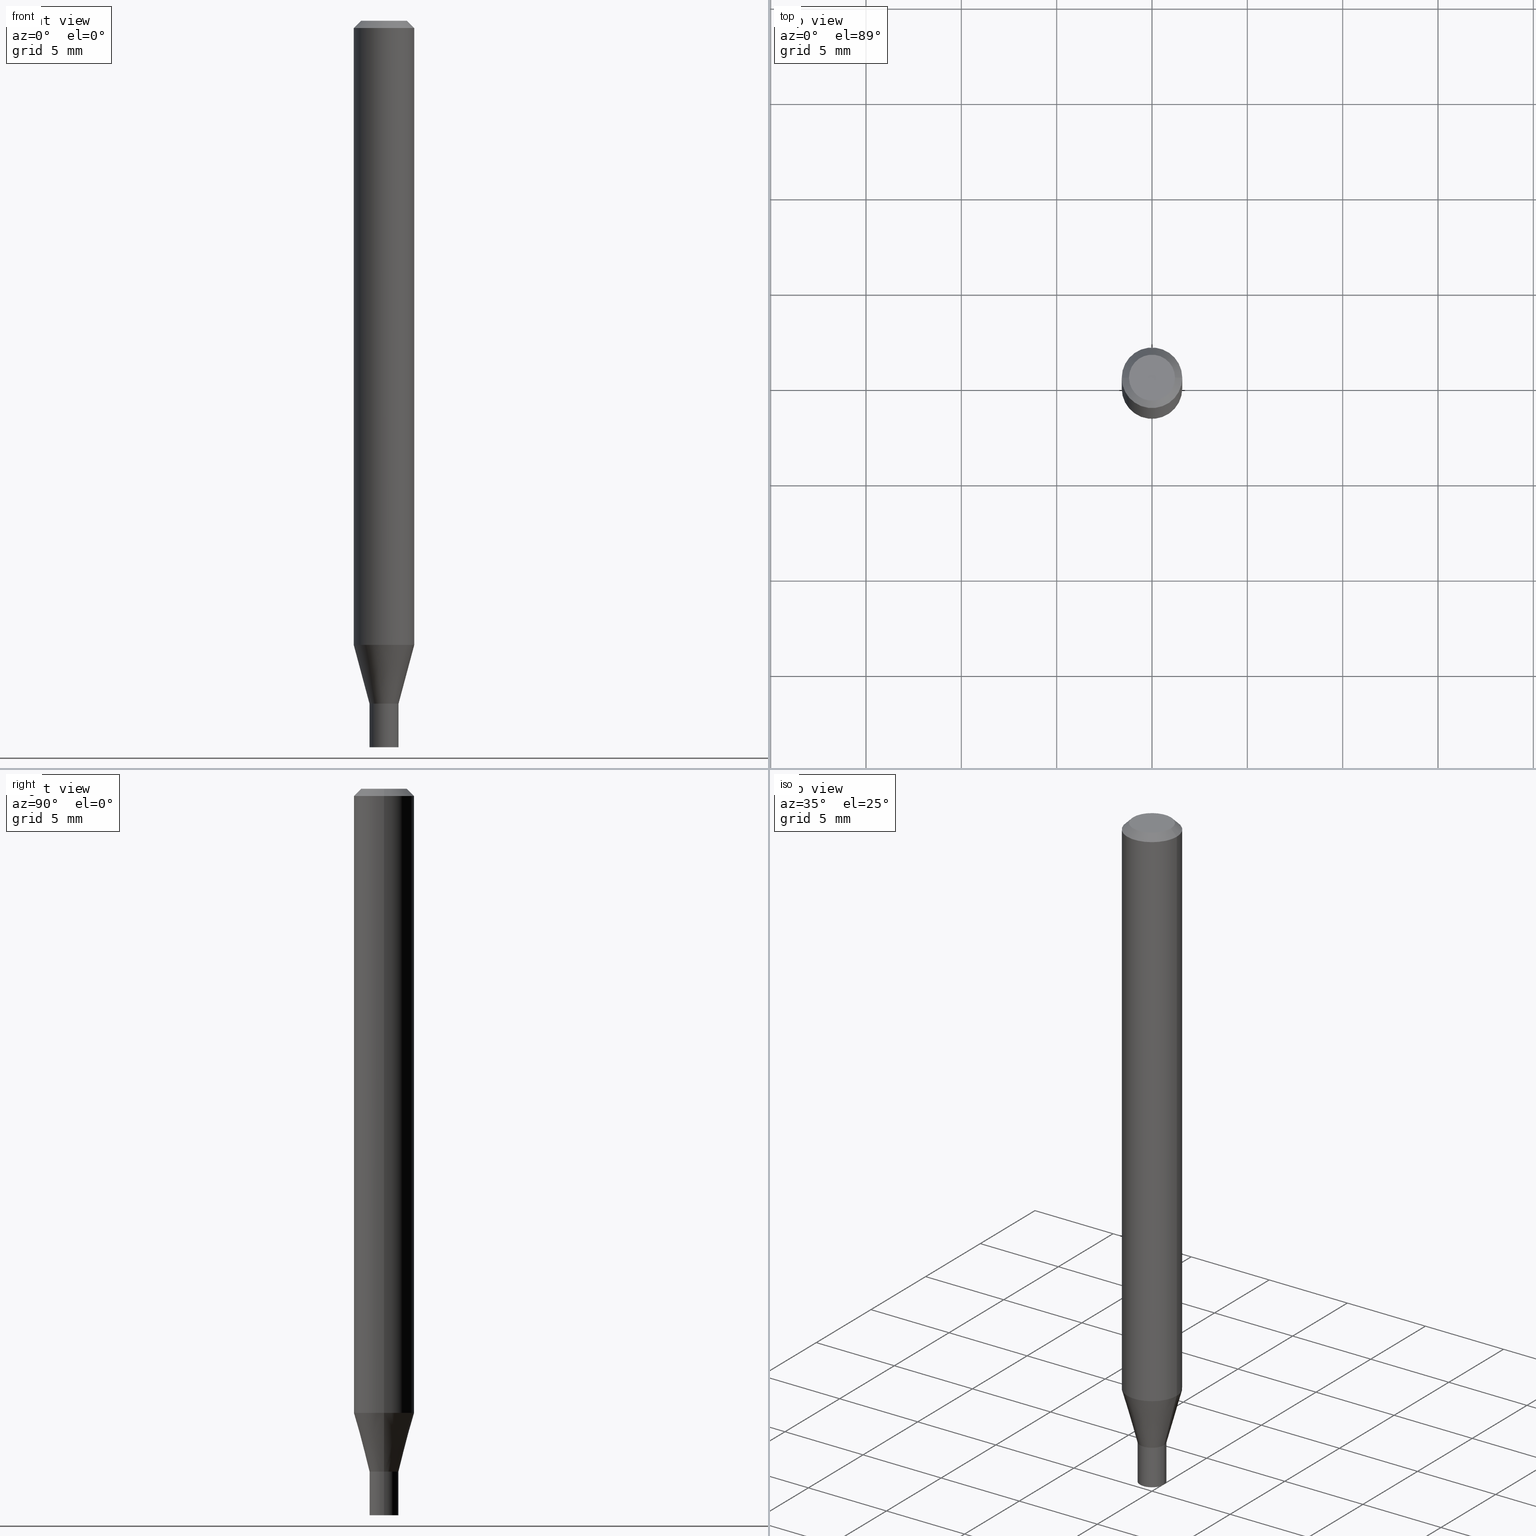
[diagram: canonical four-view strip — front | top / right | iso, engineering-drawing reading convention]
A machine part, canonical four-view strip (front | top / right | iso — engineering-drawing reading convention). The complete STEP part file that produces these views, byte-faithful:
ISO-10303-21;
HEADER;
FILE_DESCRIPTION (( 'STEP AP203' ),
    '1' );
FILE_NAME ('04095.STEP',
    '2024-03-14T16:59:09',
    ( '' ),
    ( '' ),
    'SwSTEP 2.0',
    'SolidWorks 2023',
    '' );
FILE_SCHEMA (( 'CONFIG_CONTROL_DESIGN' ));
ENDSEC;

DATA;
#1 = LINE ( 'NONE', #463, #37 ) ;
#2 = EDGE_LOOP ( 'NONE', ( #202, #253, #21, #297 ) ) ;
#3 = ADVANCED_FACE ( 'NONE', ( #4 ), #127, .T. ) ;
#4 = FACE_OUTER_BOUND ( 'NONE', #116, .T. ) ;
#5 = APPROVAL_DATE_TIME ( #96, #191 ) ;
#6 = AXIS2_PLACEMENT_3D ( 'NONE', #128, #273, #196 ) ;
#7 = AXIS2_PLACEMENT_3D ( 'NONE', #324, #80, #250 ) ;
#8 = PERSON_AND_ORGANIZATION_ROLE ( 'design_supplier' ) ;
#9 = CARTESIAN_POINT ( 'NONE',  ( 0.000000000000000000, 0.000000000000000000, 0.000000000000000000 ) ) ;
#10 = CC_DESIGN_PERSON_AND_ORGANIZATION_ASSIGNMENT ( #392, #70, ( #461 ) ) ;
#11 = CIRCLE ( 'NONE', #238, 0.02999999999999999889 ) ;
#12 = LINE ( 'NONE', #451, #49 ) ;
#13 = VERTEX_POINT ( 'NONE', #313 ) ;
#14 = CARTESIAN_POINT ( 'NONE',  ( -0.06250000000000000000, 4.440892098500626162E-16, -3.074334431409316114E-30 ) ) ;
#15 = ORIENTED_EDGE ( 'NONE', *, *, #39, .F. ) ;
#16 = CARTESIAN_POINT ( 'NONE',  ( 0.000000000000000000, 0.000000000000000000, 0.000000000000000000 ) ) ;
#17 = PLANE ( 'NONE',  #465 ) ;
#18 = EDGE_LOOP ( 'NONE', ( #157, #228, #27, #76 ) ) ;
#19 = PLANE ( 'NONE',  #252 ) ;
#20 = CARTESIAN_POINT ( 'NONE',  ( 3.151496067148295806E-29, -4.499501150886003245E-15, -1.288708348754013633 ) ) ;
#21 = ORIENTED_EDGE ( 'NONE', *, *, #111, .F. ) ;
#22 = CARTESIAN_POINT ( 'NONE',  ( 3.448111016721042669E-29, -4.922988687768835701E-15, -1.409999999999999920 ) ) ;
#23 = CARTESIAN_POINT ( 'NONE',  ( 0.000000000000000000, 0.000000000000000000, 0.000000000000000000 ) ) ;
#24 = VERTEX_POINT ( 'NONE', #129 ) ;
#25 = DIRECTION ( 'NONE',  ( -0.7071067811865416886, 2.468850131082196713E-15, -0.7071067811865531239 ) ) ;
#26 = AXIS2_PLACEMENT_3D ( 'NONE', #20, #51, #328 ) ;
#27 = ORIENTED_EDGE ( 'NONE', *, *, #39, .T. ) ;
#28 = PLANE ( 'NONE',  #393 ) ;
#29 = ORIENTED_EDGE ( 'NONE', *, *, #377, .F. ) ;
#30 = AXIS2_PLACEMENT_3D ( 'NONE', #179, #336, #374 ) ;
#31 = EDGE_LOOP ( 'NONE', ( #300, #418, #258, #466 ) ) ;
#32 = CARTESIAN_POINT ( 'NONE',  ( -0.02999999999999999889, -4.866942527288747877E-15, -1.500000000000000222 ) ) ;
#33 = AXIS2_PLACEMENT_3D ( 'NONE', #143, #288, #325 ) ;
#34 = ORIENTED_EDGE ( 'NONE', *, *, #327, .T. ) ;
#35 = DIRECTION ( 'NONE',  ( 1.000000000000000000, -6.982962677686267499E-15, 4.876176775795936353E-29 ) ) ;
#36 = PERSON_AND_ORGANIZATION_ROLE ( 'classification_officer' ) ;
#37 = VECTOR ( 'NONE', #356, 39.37007874015748143 ) ;
#38 = APPLICATION_CONTEXT ( 'configuration controlled 3d designs of mechanical parts and assemblies' ) ;
#39 = EDGE_CURVE ( 'NONE', #444, #254, #420, .T. ) ;
#40 = FACE_OUTER_BOUND ( 'NONE', #364, .T. ) ;
#41 = ADVANCED_FACE ( 'NONE', ( #236 ), #431, .T. ) ;
#42 = AXIS2_PLACEMENT_3D ( 'NONE', #340, #304, #226 ) ;
#43 = CARTESIAN_POINT ( 'NONE',  ( 3.668203209277705088E-31, -5.237222008264718399E-17, -0.01499999999999999944 ) ) ;
#44 = ORIENTED_EDGE ( 'NONE', *, *, #438, .F. ) ;
#45 = AXIS2_PLACEMENT_3D ( 'NONE', #16, #446, #294 ) ;
#46 = DIRECTION ( 'NONE',  ( -2.445468806185136597E-29, 3.491481338843145583E-15, 1.000000000000000000 ) ) ;
#47 = PRODUCT_DEFINITION_SHAPE ( 'NONE', 'NONE',  #428 ) ;
#48 = DIRECTION ( 'NONE',  ( 0.2588190451025213501, 1.565188264969621968E-15, 0.9659258262890682012 ) ) ;
#49 = VECTOR ( 'NONE', #121, 39.37007874015748143 ) ;
#50 = DIRECTION ( 'NONE',  ( -1.000000000000000000, 6.982962677686265922E-15, -4.876176775795935793E-29 ) ) ;
#51 = DIRECTION ( 'NONE',  ( -2.445468806185136597E-29, 3.491481338843145583E-15, 1.000000000000000000 ) ) ;
#52 = DIRECTION ( 'NONE',  ( 1.000000000000000000, -6.982962677686254878E-15, 0.000000000000000000 ) ) ;
#53 = ORIENTED_EDGE ( 'NONE', *, *, #241, .T. ) ;
#54 = DIRECTION ( 'NONE',  ( -1.000000000000000000, 6.982962677686265922E-15, -4.876176775795935793E-29 ) ) ;
#55 = DIRECTION ( 'NONE',  ( -0.7071067811865656694, 7.493145998870420424E-15, 0.7071067811865294761 ) ) ;
#56 = CC_DESIGN_APPROVAL ( #339, ( #461 ) ) ;
#57 = PRODUCT ( '04095', '04095', '', ( #399 ) ) ;
#58 = ORIENTED_EDGE ( 'NONE', *, *, #358, .T. ) ;
#59 = ADVANCED_FACE ( 'NONE', ( #205 ), #346, .T. ) ;
#60 = DIRECTION ( 'NONE',  ( -2.445468806185136597E-29, 3.491481338843145583E-15, 1.000000000000000000 ) ) ;
#61 = VECTOR ( 'NONE', #158, 39.37007874015748143 ) ;
#62 = VERTEX_POINT ( 'NONE', #423 ) ;
#63 = VERTEX_POINT ( 'NONE', #103 ) ;
#64 = CALENDAR_DATE ( 2024, 14, 3 ) ;
#65 = AXIS2_PLACEMENT_3D ( 'NONE', #188, #60, #410 ) ;
#66 = ORIENTED_EDGE ( 'NONE', *, *, #362, .T. ) ;
#67 = SHAPE_DEFINITION_REPRESENTATION ( #47, #229 ) ;
#68 = DIRECTION ( 'NONE',  ( 1.000000000000000000, -6.982962677686254878E-15, 0.000000000000000000 ) ) ;
#69 = CARTESIAN_POINT ( 'NONE',  ( 0.02999999999999999889, -5.132477568099424807E-15, -1.410000000000000364 ) ) ;
#70 = PERSON_AND_ORGANIZATION_ROLE ( 'creator' ) ;
#71 = ADVANCED_FACE ( 'NONE', ( #239 ), #184, .T. ) ;
#72 = PERSON_AND_ORGANIZATION_ROLE ( 'creator' ) ;
#73 = CIRCLE ( 'NONE', #243, 0.02999999999999999889 ) ;
#74 = ADVANCED_FACE ( 'NONE', ( #181 ), #17, .F. ) ;
#75 = CIRCLE ( 'NONE', #381, 0.03000000000000047420 ) ;
#76 = ORIENTED_EDGE ( 'NONE', *, *, #302, .F. ) ;
#77 = DIRECTION ( 'NONE',  ( -2.445468806185136597E-29, 3.491481338843145583E-15, 1.000000000000000000 ) ) ;
#78 = ORIENTED_EDGE ( 'NONE', *, *, #279, .F. ) ;
#79 =( CONVERSION_BASED_UNIT ( 'INCH', #180 ) LENGTH_UNIT ( ) NAMED_UNIT ( #248 ) );
#80 = DIRECTION ( 'NONE',  ( -2.445468806185136597E-29, 3.491481338843145583E-15, 1.000000000000000000 ) ) ;
#81 = ORIENTED_EDGE ( 'NONE', *, *, #464, .T. ) ;
#82 = PERSON_AND_ORGANIZATION ( #98, #110 ) ;
#83 = CARTESIAN_POINT ( 'NONE',  ( 0.02999999999999999889, -5.446710888595306494E-15, -1.500000000000000222 ) ) ;
#84 = CC_DESIGN_PERSON_AND_ORGANIZATION_ASSIGNMENT ( #206, #36, ( #436 ) ) ;
#85 = AXIS2_PLACEMENT_3D ( 'NONE', #407, #77, #218 ) ;
#86 = DIRECTION ( 'NONE',  ( -2.445468806185136877E-29, 3.491481338843145188E-15, 1.000000000000000000 ) ) ;
#87 =( LENGTH_UNIT ( ) NAMED_UNIT ( * ) SI_UNIT ( $, .METRE. ) );
#88 = DIRECTION ( 'NONE',  ( -2.445468806185136597E-29, 3.491481338843145583E-15, 1.000000000000000000 ) ) ;
#89 = ORIENTED_EDGE ( 'NONE', *, *, #357, .T. ) ;
#90 = DIRECTION ( 'NONE',  ( -2.445468806185136597E-29, 3.491481338843145583E-15, 1.000000000000000000 ) ) ;
#91 = CLOSED_SHELL ( 'NONE', ( #317, #123, #59, #369 ) ) ;
#92 = AXIS2_PLACEMENT_3D ( 'NONE', #43, #363, #153 ) ;
#93 = ORIENTED_EDGE ( 'NONE', *, *, #396, .T. ) ;
#94 = ORIENTED_EDGE ( 'NONE', *, *, #377, .T. ) ;
#95 = UNCERTAINTY_MEASURE_WITH_UNIT (LENGTH_MEASURE( 1.000000000000000082E-05 ), #79, 'distance_accuracy_value', 'NONE');
#96 = DATE_AND_TIME ( #383, #151 ) ;
#97 = LOCAL_TIME ( 12, 59, 9.000000000000000000, #416 ) ;
#98 = PERSON ( 'UNSPECIFIED', 'UNSPECIFIED', 'UNSPECIFIED', ('UNSPECIFIED'), ('UNSPECIFIED'), ('UNSPECIFIED') ) ;
#99 = CARTESIAN_POINT ( 'NONE',  ( 0.06250000000000000000, -4.364351673553916694E-16, 3.047610484872459871E-30 ) ) ;
#100 = CARTESIAN_POINT ( 'NONE',  ( 0.06250000000000000000, -4.935936318241394126E-15, -1.288708348754013633 ) ) ;
#101 = FACE_OUTER_BOUND ( 'NONE', #2, .T. ) ;
#102 = CONICAL_SURFACE ( 'NONE', #388, 0.03000000000000047420, 0.2617993877991500740 ) ;
#103 = CARTESIAN_POINT ( 'NONE',  ( 0.02949999999999999845, -5.128986086760581800E-15, -1.410000000000000586 ) ) ;
#104 = DIRECTION ( 'NONE',  ( 1.000000000000000000, -6.982962677686265922E-15, 4.876176775795935793E-29 ) ) ;
#105 = APPROVAL_STATUS ( 'not_yet_approved' ) ;
#106 = PERSON_AND_ORGANIZATION ( #98, #110 ) ;
#107 = VECTOR ( 'NONE', #131, 39.37007874015748143 ) ;
#108 = AXIS2_PLACEMENT_3D ( 'NONE', #411, #195, #245 ) ;
#109 = DIRECTION ( 'NONE',  ( -2.445468806185136597E-29, 3.491481338843145583E-15, 1.000000000000000000 ) ) ;
#110 = ORGANIZATION ( 'UNSPECIFIED', 'UNSPECIFIED', '' ) ;
#111 = EDGE_CURVE ( 'NONE', #415, #397, #310, .T. ) ;
#112 = ORIENTED_EDGE ( 'NONE', *, *, #443, .F. ) ;
#113 = CIRCLE ( 'NONE', #156, 0.06250000000000000000 ) ;
#114 = DIRECTION ( 'NONE',  ( -2.445468806185136597E-29, 3.491481338843145583E-15, 1.000000000000000000 ) ) ;
#115 = DIRECTION ( 'NONE',  ( 1.000000000000000000, -6.982962677686267499E-15, 4.852736867747366768E-29 ) ) ;
#116 = EDGE_LOOP ( 'NONE', ( #269, #154, #53, #338 ) ) ;
#117 = CARTESIAN_POINT ( 'NONE',  ( -0.03000000000000033890, 2.131628207280324638E-16, -1.475680527076488172E-30 ) ) ;
#118 = PERSON_AND_ORGANIZATION_ROLE ( 'design_owner' ) ;
#119 = VERTEX_POINT ( 'NONE', #319 ) ;
#120 = DIRECTION ( 'NONE',  ( 2.438088387897960049E-29, -3.491481338843145188E-15, -1.000000000000000000 ) ) ;
#121 = DIRECTION ( 'NONE',  ( -2.445468806185136877E-29, 3.491481338843145188E-15, 1.000000000000000000 ) ) ;
#122 = DIRECTION ( 'NONE',  ( 1.000000000000000000, -6.982962677686254878E-15, 0.000000000000000000 ) ) ;
#123 = ADVANCED_FACE ( 'NONE', ( #40 ), #208, .F. ) ;
#124 = ORIENTED_EDGE ( 'NONE', *, *, #198, .F. ) ;
#125 = DIRECTION ( 'NONE',  ( -0.2588190451025213501, 5.211531920934551042E-15, 0.9659258262890682012 ) ) ;
#126 = ORIENTED_EDGE ( 'NONE', *, *, #321, .F. ) ;
#127 = CONICAL_SURFACE ( 'NONE', #6, 0.06250000000000000000, 0.7853981633974401744 ) ;
#128 = CARTESIAN_POINT ( 'NONE',  ( 3.668203209277705088E-31, -5.237222008264718399E-17, -0.01499999999999999944 ) ) ;
#129 = CARTESIAN_POINT ( 'NONE',  ( -0.02949999999999999845, -4.710729353545495154E-15, -1.410000000000000586 ) ) ;
#130 = CARTESIAN_POINT ( 'NONE',  ( -0.02999999999999999889, 2.131628207280300479E-16, -1.475680527076471707E-30 ) ) ;
#131 = DIRECTION ( 'NONE',  ( -2.445468806185136877E-29, 3.491481338843145188E-15, 1.000000000000000000 ) ) ;
#132 = AXIS2_PLACEMENT_3D ( 'NONE', #408, #251, #136 ) ;
#133 = CARTESIAN_POINT ( 'NONE',  ( 3.448111016721043790E-29, -4.922988687768837279E-15, -1.410000000000000586 ) ) ;
#134 = CARTESIAN_POINT ( 'NONE',  ( 3.446888282317950988E-29, -4.921242947099414987E-15, -1.409500000000000419 ) ) ;
#135 = CYLINDRICAL_SURFACE ( 'NONE', #320, 0.06250000000000000000 ) ;
#136 = DIRECTION ( 'NONE',  ( 1.000000000000000000, -6.982962677686268288E-15, 0.000000000000000000 ) ) ;
#137 = CIRCLE ( 'NONE', #26, 0.06250000000000000000 ) ;
#138 = CARTESIAN_POINT ( 'NONE',  ( 3.668203209277705088E-31, -5.237222008264718399E-17, -0.01499999999999999944 ) ) ;
#139 = FACE_OUTER_BOUND ( 'NONE', #335, .T. ) ;
#140 = ORIENTED_EDGE ( 'NONE', *, *, #358, .F. ) ;
#141 =( GEOMETRIC_REPRESENTATION_CONTEXT ( 3 ) GLOBAL_UNCERTAINTY_ASSIGNED_CONTEXT ( ( #95 ) ) GLOBAL_UNIT_ASSIGNED_CONTEXT ( ( #79, #459, #305 ) ) REPRESENTATION_CONTEXT ( 'NONE', 'WORKASPACE' ) );
#142 = FACE_OUTER_BOUND ( 'NONE', #177, .T. ) ;
#143 = CARTESIAN_POINT ( 'NONE',  ( 3.576687321579069994E-29, -5.368277968210015545E-15, -1.500000000000000222 ) ) ;
#144 = CYLINDRICAL_SURFACE ( 'NONE', #42, 0.06250000000000000000 ) ;
#145 = DIRECTION ( 'NONE',  ( 1.000000000000000000, -6.982962677686266711E-15, 0.000000000000000000 ) ) ;
#146 = ADVANCED_FACE ( 'NONE', ( #214 ), #194, .T. ) ;
#147 = ORIENTED_EDGE ( 'NONE', *, *, #386, .F. ) ;
#148 = CARTESIAN_POINT ( 'NONE',  ( 3.446888282317950988E-29, -4.921242947099414987E-15, -1.409500000000000419 ) ) ;
#149 = ORIENTED_EDGE ( 'NONE', *, *, #190, .F. ) ;
#150 = CARTESIAN_POINT ( 'NONE',  ( -0.03000000000000019665, -4.708080126371383164E-15, -1.409500000000000419 ) ) ;
#151 = LOCAL_TIME ( 12, 59, 9.000000000000000000, #280 ) ;
#152 = CARTESIAN_POINT ( 'NONE',  ( -0.06250000000000000000, 3.840629472727444916E-16, -0.01499999999999999944 ) ) ;
#153 = DIRECTION ( 'NONE',  ( -1.000000000000000000, 6.982962677686266711E-15, 0.000000000000000000 ) ) ;
#154 = ORIENTED_EDGE ( 'NONE', *, *, #321, .T. ) ;
#155 = ADVANCED_FACE ( 'NONE', ( #139 ), #102, .T. ) ;
#156 = AXIS2_PLACEMENT_3D ( 'NONE', #138, #114, #145 ) ;
#157 = ORIENTED_EDGE ( 'NONE', *, *, #327, .F. ) ;
#158 = DIRECTION ( 'NONE',  ( -2.445468806185136877E-29, 3.491481338843145188E-15, 1.000000000000000000 ) ) ;
#159 = CC_DESIGN_PERSON_AND_ORGANIZATION_ASSIGNMENT ( #450, #118, ( #57 ) ) ;
#160 = ORIENTED_EDGE ( 'NONE', *, *, #396, .F. ) ;
#161 = ORIENTED_EDGE ( 'NONE', *, *, #323, .F. ) ;
#162 = DIRECTION ( 'NONE',  ( -2.445468806185136877E-29, 3.491481338843145188E-15, 1.000000000000000000 ) ) ;
#163 = DATE_AND_TIME ( #64, #460 ) ;
#164 = AXIS2_PLACEMENT_3D ( 'NONE', #134, #172, #427 ) ;
#165 = CIRCLE ( 'NONE', #7, 0.03000000000000047420 ) ;
#166 = ORIENTED_EDGE ( 'NONE', *, *, #372, .T. ) ;
#167 = APPROVAL_ROLE ( '' ) ;
#168 = ORIENTED_EDGE ( 'NONE', *, *, #419, .T. ) ;
#169 = COORDINATED_UNIVERSAL_TIME_OFFSET ( 5, 0, .BEHIND. ) ;
#170 = CIRCLE ( 'NONE', #244, 0.02949999999999999845 ) ;
#171 = VECTOR ( 'NONE', #86, 39.37007874015748143 ) ;
#172 = DIRECTION ( 'NONE',  ( -2.445468806185136597E-29, 3.491481338843145583E-15, 1.000000000000000000 ) ) ;
#173 = APPROVAL_ROLE ( '' ) ;
#174 = AXIS2_PLACEMENT_3D ( 'NONE', #417, #275, #203 ) ;
#175 = CC_DESIGN_DATE_AND_TIME_ASSIGNMENT ( #360, #434, ( #428 ) ) ;
#176 = CARTESIAN_POINT ( 'NONE',  ( 0.06250000000000000000, -4.811533449433679005E-16, -0.01499999999999999944 ) ) ;
#177 = EDGE_LOOP ( 'NONE', ( #160, #448, #66, #78 ) ) ;
#178 = CIRCLE ( 'NONE', #359, 0.02999999999999999889 ) ;
#179 = CARTESIAN_POINT ( 'NONE',  ( -6.039856226162565090E-45, 8.623313963198306787E-31, 2.469815280770059421E-16 ) ) ;
#180 = LENGTH_MEASURE_WITH_UNIT ( LENGTH_MEASURE( 0.02539999999999999897 ), #87 );
#181 = FACE_OUTER_BOUND ( 'NONE', #276, .T. ) ;
#182 = AXIS2_PLACEMENT_3D ( 'NONE', #266, #307, #430 ) ;
#183 = EDGE_LOOP ( 'NONE', ( #384, #93, #94, #161 ) ) ;
#184 = CONICAL_SURFACE ( 'NONE', #182, 0.02949999999999999845, 0.7853981633974739252 ) ;
#185 = ORIENTED_EDGE ( 'NONE', *, *, #190, .T. ) ;
#186 = CARTESIAN_POINT ( 'NONE',  ( 0.03000000000000047420, -5.132477568099426385E-15, -1.409999999999999920 ) ) ;
#187 = DIRECTION ( 'NONE',  ( -2.445468806185136877E-29, 3.491481338843145188E-15, 1.000000000000000000 ) ) ;
#188 = CARTESIAN_POINT ( 'NONE',  ( 3.151496067148295806E-29, -4.499501150886003245E-15, -1.288708348754013633 ) ) ;
#189 = DESIGN_CONTEXT ( 'detailed design', #259, 'design' ) ;
#190 = EDGE_CURVE ( 'NONE', #219, #62, #370, .T. ) ;
#191 = APPROVAL ( #207, 'UNSPECIFIED' ) ;
#192 = ORIENTED_EDGE ( 'NONE', *, *, #279, .T. ) ;
#193 = DIRECTION ( 'NONE',  ( -2.445468806185136597E-29, 3.491481338843145583E-15, 1.000000000000000000 ) ) ;
#194 = CONICAL_SURFACE ( 'NONE', #92, 0.06250000000000000000, 0.7853981633974401744 ) ;
#195 = DIRECTION ( 'NONE',  ( -2.445468806185136597E-29, 3.491481338843145583E-15, 1.000000000000000000 ) ) ;
#196 = DIRECTION ( 'NONE',  ( -1.000000000000000000, 6.982962677686266711E-15, 0.000000000000000000 ) ) ;
#197 = DIRECTION ( 'NONE',  ( 1.000000000000000000, -6.982962677686250933E-15, 0.000000000000000000 ) ) ;
#198 = EDGE_CURVE ( 'NONE', #62, #219, #11, .T. ) ;
#199 = EDGE_LOOP ( 'NONE', ( #440, #168 ) ) ;
#200 = EDGE_CURVE ( 'NONE', #24, #63, #361, .T. ) ;
#201 = CARTESIAN_POINT ( 'NONE',  ( 3.448111016721043790E-29, -4.922988687768837279E-15, -1.410000000000000586 ) ) ;
#202 = ORIENTED_EDGE ( 'NONE', *, *, #422, .T. ) ;
#203 = DIRECTION ( 'NONE',  ( 1.000000000000000000, -6.982962677686250933E-15, 0.000000000000000000 ) ) ;
#204 = AXIS2_PLACEMENT_3D ( 'NONE', #148, #365, #378 ) ;
#205 = FACE_OUTER_BOUND ( 'NONE', #380, .T. ) ;
#206 = PERSON_AND_ORGANIZATION ( #98, #110 ) ;
#207 = APPROVAL_STATUS ( 'not_yet_approved' ) ;
#208 = PLANE ( 'NONE',  #33 ) ;
#209 = CALENDAR_DATE ( 2024, 14, 3 ) ;
#210 = CLOSED_SHELL ( 'NONE', ( #285, #212, #3, #391, #155, #41, #449, #146, #425, #74, #71, #270 ) ) ;
#211 = CIRCLE ( 'NONE', #352, 0.04749999999999999362 ) ;
#212 = ADVANCED_FACE ( 'NONE', ( #101 ), #454, .T. ) ;
#213 = CYLINDRICAL_SURFACE ( 'NONE', #85, 0.02999999999999999889 ) ;
#214 = FACE_OUTER_BOUND ( 'NONE', #462, .T. ) ;
#215 = DIRECTION ( 'NONE',  ( 1.000000000000000000, -6.982962677686266711E-15, 4.876176775795935793E-29 ) ) ;
#216 = VERTEX_POINT ( 'NONE', #32 ) ;
#217 = FACE_OUTER_BOUND ( 'NONE', #367, .T. ) ;
#218 = DIRECTION ( 'NONE',  ( 1.000000000000000000, -6.982962677686267499E-15, 4.876176775795936353E-29 ) ) ;
#219 = VERTEX_POINT ( 'NONE', #69 ) ;
#220 = LINE ( 'NONE', #284, #395 ) ;
#221 = EDGE_CURVE ( 'NONE', #63, #415, #1, .T. ) ;
#222 = ORIENTED_EDGE ( 'NONE', *, *, #443, .T. ) ;
#223 = CIRCLE ( 'NONE', #108, 0.06250000000000000000 ) ;
#224 = DIRECTION ( 'NONE',  ( 0.7071067811865416886, -7.319954787623233957E-15, -0.7071067811865531239 ) ) ;
#225 = ORIENTED_EDGE ( 'NONE', *, *, #200, .F. ) ;
#226 = DIRECTION ( 'NONE',  ( 1.000000000000000000, -6.982962677686266711E-15, 4.876176775795935793E-29 ) ) ;
#227 = DIRECTION ( 'NONE',  ( 1.000000000000000000, -6.982962677686265922E-15, 4.876176775795935232E-29 ) ) ;
#228 = ORIENTED_EDGE ( 'NONE', *, *, #323, .T. ) ;
#229 = ADVANCED_BREP_SHAPE_REPRESENTATION ( '04095', ( #433, #426, #45 ), #141 ) ;
#230 = LINE ( 'NONE', #186, #261 ) ;
#231 = DIRECTION ( 'NONE',  ( -2.445468806185136597E-29, 3.491481338843145583E-15, 1.000000000000000000 ) ) ;
#232 = ORIENTED_EDGE ( 'NONE', *, *, #111, .T. ) ;
#233 = CIRCLE ( 'NONE', #30, 0.04749999999999999362 ) ;
#234 = VERTEX_POINT ( 'NONE', #272 ) ;
#235 = EDGE_LOOP ( 'NONE', ( #455, #34, #348, #15 ) ) ;
#236 = FACE_OUTER_BOUND ( 'NONE', #183, .T. ) ;
#237 = DATE_AND_TIME ( #349, #281 ) ;
#238 = AXIS2_PLACEMENT_3D ( 'NONE', #282, #109, #414 ) ;
#239 = FACE_OUTER_BOUND ( 'NONE', #31, .T. ) ;
#240 = PERSON_AND_ORGANIZATION ( #98, #110 ) ;
#241 = EDGE_CURVE ( 'NONE', #254, #290, #223, .T. ) ;
#242 = SECURITY_CLASSIFICATION_LEVEL ( 'unclassified' ) ;
#243 = AXIS2_PLACEMENT_3D ( 'NONE', #330, #231, #379 ) ;
#244 = AXIS2_PLACEMENT_3D ( 'NONE', #342, #256, #291 ) ;
#245 = DIRECTION ( 'NONE',  ( 1.000000000000000000, -6.982962677686266711E-15, 0.000000000000000000 ) ) ;
#246 = APPROVAL_DATE_TIME ( #429, #347 ) ;
#247 = VECTOR ( 'NONE', #187, 39.37007874015748143 ) ;
#248 = DIMENSIONAL_EXPONENTS ( 1.000000000000000000, 0.000000000000000000, 0.000000000000000000, 0.000000000000000000, 0.000000000000000000, 0.000000000000000000, 0.000000000000000000 ) ;
#249 = EDGE_CURVE ( 'NONE', #24, #397, #220, .T. ) ;
#250 = DIRECTION ( 'NONE',  ( 1.000000000000000000, -6.982962677686254878E-15, 0.000000000000000000 ) ) ;
#251 = DIRECTION ( 'NONE',  ( -2.445468806185136597E-29, 3.491481338843145583E-15, 1.000000000000000000 ) ) ;
#252 = AXIS2_PLACEMENT_3D ( 'NONE', #371, #301, #50 ) ;
#253 = ORIENTED_EDGE ( 'NONE', *, *, #249, .T. ) ;
#254 = VERTEX_POINT ( 'NONE', #332 ) ;
#255 = CC_DESIGN_PERSON_AND_ORGANIZATION_ASSIGNMENT ( #394, #72, ( #428 ) ) ;
#256 = DIRECTION ( 'NONE',  ( -2.445468806185136597E-29, 3.491481338843145583E-15, 1.000000000000000000 ) ) ;
#257 = LINE ( 'NONE', #152, #442 ) ;
#258 = ORIENTED_EDGE ( 'NONE', *, *, #221, .T. ) ;
#259 = APPLICATION_CONTEXT ( 'configuration controlled 3d designs of mechanical parts and assemblies' ) ;
#260 = VERTEX_POINT ( 'NONE', #287 ) ;
#261 = VECTOR ( 'NONE', #48, 39.37007874015747433 ) ;
#262 = CARTESIAN_POINT ( 'NONE',  ( 0.03000000000000019665, -5.130731827430004092E-15, -1.409500000000000419 ) ) ;
#263 = PRODUCT_RELATED_PRODUCT_CATEGORY ( 'detail', '', ( #57 ) ) ;
#264 = CARTESIAN_POINT ( 'NONE',  ( 3.316907271900976096E-16, 0.04749999999999999362, -4.235459955654642541E-17 ) ) ;
#265 = EDGE_CURVE ( 'NONE', #119, #260, #165, .T. ) ;
#266 = CARTESIAN_POINT ( 'NONE',  ( 3.448111016721043790E-29, -4.922988687768837279E-15, -1.410000000000000586 ) ) ;
#267 = FACE_OUTER_BOUND ( 'NONE', #199, .T. ) ;
#268 = APPROVAL_PERSON_ORGANIZATION ( #82, #347, #167 ) ;
#269 = ORIENTED_EDGE ( 'NONE', *, *, #419, .F. ) ;
#270 = ADVANCED_FACE ( 'NONE', ( #400 ), #375, .F. ) ;
#271 = APPROVAL_STATUS ( 'not_yet_approved' ) ;
#272 = CARTESIAN_POINT ( 'NONE',  ( -0.04749999999999999362, 3.578768372314215436E-16, 2.469815280770035755E-16 ) ) ;
#273 = DIRECTION ( 'NONE',  ( 2.445468806185136597E-29, -3.491481338843145583E-15, -1.000000000000000000 ) ) ;
#274 = ORIENTED_EDGE ( 'NONE', *, *, #403, .T. ) ;
#275 = DIRECTION ( 'NONE',  ( -2.445468806185136597E-29, 3.491481338843145583E-15, 1.000000000000000000 ) ) ;
#276 = EDGE_LOOP ( 'NONE', ( #309, #225 ) ) ;
#277 = COORDINATED_UNIVERSAL_TIME_OFFSET ( 5, 0, .BEHIND. ) ;
#278 = VECTOR ( 'NONE', #125, 39.37007874015747433 ) ;
#279 = EDGE_CURVE ( 'NONE', #119, #415, #12, .T. ) ;
#280 = COORDINATED_UNIVERSAL_TIME_OFFSET ( 5, 0, .BEHIND. ) ;
#281 = LOCAL_TIME ( 12, 59, 9.000000000000000000, #277 ) ;
#282 = CARTESIAN_POINT ( 'NONE',  ( 3.448111016721043229E-29, -4.922988687768836490E-15, -1.410000000000000364 ) ) ;
#283 = COORDINATED_UNIVERSAL_TIME_OFFSET ( 5, 0, .BEHIND. ) ;
#284 = CARTESIAN_POINT ( 'NONE',  ( -0.02949999999999999845, -4.713378580719607144E-15, -1.410000000000000586 ) ) ;
#285 = ADVANCED_FACE ( 'NONE', ( #142 ), #341, .F. ) ;
#286 = LOCAL_TIME ( 12, 59, 9.000000000000000000, #283 ) ;
#287 = CARTESIAN_POINT ( 'NONE',  ( -0.03000000000000047420, -4.382618904038371071E-15, -1.409999999999999920 ) ) ;
#288 = DIRECTION ( 'NONE',  ( -2.438088387897960049E-29, 3.491481338843145188E-15, 1.000000000000000000 ) ) ;
#289 = CIRCLE ( 'NONE', #204, 0.03000000000000019665 ) ;
#290 = VERTEX_POINT ( 'NONE', #398 ) ;
#291 = DIRECTION ( 'NONE',  ( 1.000000000000000000, -6.982962677686250933E-15, 0.000000000000000000 ) ) ;
#292 = CARTESIAN_POINT ( 'NONE',  ( -6.039856226162565090E-45, 8.623313963198306787E-31, 2.469815280770059421E-16 ) ) ;
#293 = LINE ( 'NONE', #117, #61 ) ;
#294 = DIRECTION ( 'NONE',  ( 1.000000000000000000, 0.000000000000000000, 0.000000000000000000 ) ) ;
#295 = FACE_OUTER_BOUND ( 'NONE', #343, .T. ) ;
#296 = CIRCLE ( 'NONE', #65, 0.06250000000000000000 ) ;
#297 = ORIENTED_EDGE ( 'NONE', *, *, #221, .F. ) ;
#298 = CARTESIAN_POINT ( 'NONE',  ( 0.02999999999999999889, -2.094888803305880210E-16, 1.462853032738780878E-30 ) ) ;
#299 = DIRECTION ( 'NONE',  ( 1.000000000000000000, -6.982962677686265922E-15, 4.876176775795935232E-29 ) ) ;
#300 = ORIENTED_EDGE ( 'NONE', *, *, #249, .F. ) ;
#301 = DIRECTION ( 'NONE',  ( 2.438088387897960049E-29, -3.491481338843145188E-15, -1.000000000000000000 ) ) ;
#302 = EDGE_CURVE ( 'NONE', #290, #254, #113, .T. ) ;
#303 = VERTEX_POINT ( 'NONE', #83 ) ;
#304 = DIRECTION ( 'NONE',  ( -2.445468806185136597E-29, 3.491481338843145583E-15, 1.000000000000000000 ) ) ;
#305 =( NAMED_UNIT ( * ) SI_UNIT ( $, .STERADIAN. ) SOLID_ANGLE_UNIT ( ) );
#306 = LINE ( 'NONE', #130, #405 ) ;
#307 = DIRECTION ( 'NONE',  ( -2.445468806185136597E-29, 3.491481338843145583E-15, 1.000000000000000000 ) ) ;
#308 = CC_DESIGN_APPROVAL ( #191, ( #436 ) ) ;
#309 = ORIENTED_EDGE ( 'NONE', *, *, #422, .F. ) ;
#310 = CIRCLE ( 'NONE', #164, 0.03000000000000019665 ) ;
#311 = AXIS2_PLACEMENT_3D ( 'NONE', #201, #90, #197 ) ;
#312 = DATE_TIME_ROLE ( 'classification_date' ) ;
#313 = CARTESIAN_POINT ( 'NONE',  ( 0.04749999999999999362, -4.035134999187574186E-16, 2.469815280770085059E-16 ) ) ;
#314 = CARTESIAN_POINT ( 'NONE',  ( 0.000000000000000000, 0.000000000000000000, 0.000000000000000000 ) ) ;
#315 = APPROVAL_ROLE ( '' ) ;
#316 = AXIS2_PLACEMENT_3D ( 'NONE', #314, #354, #35 ) ;
#317 = ADVANCED_FACE ( 'NONE', ( #295 ), #213, .T. ) ;
#318 = PERSON_AND_ORGANIZATION ( #98, #110 ) ;
#319 = CARTESIAN_POINT ( 'NONE',  ( 0.03000000000000047420, -5.132477568099426385E-15, -1.409999999999999920 ) ) ;
#320 = AXIS2_PLACEMENT_3D ( 'NONE', #9, #447, #215 ) ;
#321 = EDGE_CURVE ( 'NONE', #13, #254, #366, .T. ) ;
#322 = AXIS2_PLACEMENT_3D ( 'NONE', #23, #441, #299 ) ;
#323 = EDGE_CURVE ( 'NONE', #409, #444, #137, .T. ) ;
#324 = CARTESIAN_POINT ( 'NONE',  ( 3.448111016721042669E-29, -4.922988687768835701E-15, -1.409999999999999920 ) ) ;
#325 = DIRECTION ( 'NONE',  ( 1.000000000000000000, -6.982962677686265922E-15, 4.876176775795935793E-29 ) ) ;
#326 = ORIENTED_EDGE ( 'NONE', *, *, #265, .F. ) ;
#327 = EDGE_CURVE ( 'NONE', #409, #290, #437, .T. ) ;
#328 = DIRECTION ( 'NONE',  ( 1.000000000000000000, -6.982962677686262766E-15, 0.000000000000000000 ) ) ;
#329 = DIRECTION ( 'NONE',  ( -2.438088387897960049E-29, 3.491481338843145188E-15, 1.000000000000000000 ) ) ;
#330 = CARTESIAN_POINT ( 'NONE',  ( 3.668203209277704895E-29, -5.237222008264718177E-15, -1.500000000000000222 ) ) ;
#331 = ORIENTED_EDGE ( 'NONE', *, *, #464, .F. ) ;
#332 = CARTESIAN_POINT ( 'NONE',  ( 0.06250000000000000000, -4.888073874380388472E-16, -0.01499999999999999944 ) ) ;
#333 = CALENDAR_DATE ( 2024, 14, 3 ) ;
#334 = AXIS2_PLACEMENT_3D ( 'NONE', #457, #387, #68 ) ;
#335 = EDGE_LOOP ( 'NONE', ( #390, #166, #44, #29 ) ) ;
#336 = DIRECTION ( 'NONE',  ( -2.445468806185136597E-29, 3.491481338843145583E-15, 1.000000000000000000 ) ) ;
#337 = CARTESIAN_POINT ( 'NONE',  ( 0.000000000000000000, 0.000000000000000000, 0.000000000000000000 ) ) ;
#338 = ORIENTED_EDGE ( 'NONE', *, *, #357, .F. ) ;
#339 = APPROVAL ( #105, 'UNSPECIFIED' ) ;
#340 = CARTESIAN_POINT ( 'NONE',  ( 0.000000000000000000, 0.000000000000000000, 0.000000000000000000 ) ) ;
#341 = CYLINDRICAL_SURFACE ( 'NONE', #322, 0.03000000000000033890 ) ;
#342 = CARTESIAN_POINT ( 'NONE',  ( 3.448111016721043790E-29, -4.922988687768837279E-15, -1.410000000000000586 ) ) ;
#343 = EDGE_LOOP ( 'NONE', ( #222, #58, #149, #401 ) ) ;
#344 = DIRECTION ( 'NONE',  ( 1.000000000000000000, -6.982962677686268288E-15, 0.000000000000000000 ) ) ;
#345 = APPLICATION_PROTOCOL_DEFINITION ( 'international standard', 'config_control_design', 1994, #38 ) ;
#346 = CYLINDRICAL_SURFACE ( 'NONE', #316, 0.02999999999999999889 ) ;
#347 = APPROVAL ( #271, 'UNSPECIFIED' ) ;
#348 = ORIENTED_EDGE ( 'NONE', *, *, #241, .F. ) ;
#349 = CALENDAR_DATE ( 2024, 14, 3 ) ;
#350 = EDGE_CURVE ( 'NONE', #234, #13, #211, .T. ) ;
#351 = EDGE_LOOP ( 'NONE', ( #147, #326, #192, #232 ) ) ;
#352 = AXIS2_PLACEMENT_3D ( 'NONE', #292, #46, #115 ) ;
#353 = CC_DESIGN_DATE_AND_TIME_ASSIGNMENT ( #163, #312, ( #436 ) ) ;
#354 = DIRECTION ( 'NONE',  ( -2.445468806185136597E-29, 3.491481338843145583E-15, 1.000000000000000000 ) ) ;
#355 = FACE_OUTER_BOUND ( 'NONE', #18, .T. ) ;
#356 = DIRECTION ( 'NONE',  ( 0.7071067811865656694, -2.468850131082446387E-15, 0.7071067811865294761 ) ) ;
#357 = EDGE_CURVE ( 'NONE', #234, #290, #257, .T. ) ;
#358 = EDGE_CURVE ( 'NONE', #216, #62, #306, .T. ) ;
#359 = AXIS2_PLACEMENT_3D ( 'NONE', #445, #193, #344 ) ;
#360 = DATE_AND_TIME ( #209, #286 ) ;
#361 = CIRCLE ( 'NONE', #174, 0.02949999999999999845 ) ;
#362 = EDGE_CURVE ( 'NONE', #397, #415, #289, .T. ) ;
#363 = DIRECTION ( 'NONE',  ( 2.445468806185136597E-29, -3.491481338843145583E-15, -1.000000000000000000 ) ) ;
#364 = EDGE_LOOP ( 'NONE', ( #112, #331 ) ) ;
#365 = DIRECTION ( 'NONE',  ( -2.445468806185136597E-29, 3.491481338843145583E-15, 1.000000000000000000 ) ) ;
#366 = LINE ( 'NONE', #176, #424 ) ;
#367 = EDGE_LOOP ( 'NONE', ( #185, #413 ) ) ;
#368 = CARTESIAN_POINT ( 'NONE',  ( -0.03000000000000047420, -4.709825867040802301E-15, -1.409999999999999920 ) ) ;
#369 = ADVANCED_FACE ( 'NONE', ( #217 ), #19, .F. ) ;
#370 = CIRCLE ( 'NONE', #132, 0.02999999999999999889 ) ;
#371 = CARTESIAN_POINT ( 'NONE',  ( 2.094888803306224597E-16, 0.02999999999999507921, -1.410000000000000364 ) ) ;
#372 = EDGE_CURVE ( 'NONE', #260, #409, #406, .T. ) ;
#373 = ORIENTED_EDGE ( 'NONE', *, *, #350, .F. ) ;
#374 = DIRECTION ( 'NONE',  ( 1.000000000000000000, -6.982962677686267499E-15, 4.852736867747366768E-29 ) ) ;
#375 = CYLINDRICAL_SURFACE ( 'NONE', #432, 0.03000000000000033890 ) ;
#376 = CC_DESIGN_APPROVAL ( #347, ( #428 ) ) ;
#377 = EDGE_CURVE ( 'NONE', #119, #444, #230, .T. ) ;
#378 = DIRECTION ( 'NONE',  ( 1.000000000000000000, -6.982962677686254089E-15, 0.000000000000000000 ) ) ;
#379 = DIRECTION ( 'NONE',  ( 1.000000000000000000, -6.982962677686268288E-15, 0.000000000000000000 ) ) ;
#380 = EDGE_LOOP ( 'NONE', ( #140, #81, #274, #124 ) ) ;
#381 = AXIS2_PLACEMENT_3D ( 'NONE', #22, #88, #122 ) ;
#382 = ORIENTED_EDGE ( 'NONE', *, *, #302, .T. ) ;
#383 = CALENDAR_DATE ( 2024, 14, 3 ) ;
#384 = ORIENTED_EDGE ( 'NONE', *, *, #372, .F. ) ;
#385 = APPROVAL_PERSON_ORGANIZATION ( #106, #191, #315 ) ;
#386 = EDGE_CURVE ( 'NONE', #260, #397, #293, .T. ) ;
#387 = DIRECTION ( 'NONE',  ( -2.445468806185136597E-29, 3.491481338843145583E-15, 1.000000000000000000 ) ) ;
#388 = AXIS2_PLACEMENT_3D ( 'NONE', #439, #453, #52 ) ;
#389 = APPROVAL_DATE_TIME ( #237, #339 ) ;
#390 = ORIENTED_EDGE ( 'NONE', *, *, #265, .T. ) ;
#391 = ADVANCED_FACE ( 'NONE', ( #456 ), #144, .T. ) ;
#392 = PERSON_AND_ORGANIZATION ( #98, #110 ) ;
#393 = AXIS2_PLACEMENT_3D ( 'NONE', #264, #120, #54 ) ;
#394 = PERSON_AND_ORGANIZATION ( #98, #110 ) ;
#395 = VECTOR ( 'NONE', #55, 39.37007874015748143 ) ;
#396 = EDGE_CURVE ( 'NONE', #260, #119, #75, .T. ) ;
#397 = VERTEX_POINT ( 'NONE', #150 ) ;
#398 = CARTESIAN_POINT ( 'NONE',  ( -0.06250000000000000000, -1.831847475634262349E-15, -0.01499999999999999944 ) ) ;
#399 = MECHANICAL_CONTEXT ( 'NONE', #38, 'mechanical' ) ;
#400 = FACE_OUTER_BOUND ( 'NONE', #351, .T. ) ;
#401 = ORIENTED_EDGE ( 'NONE', *, *, #403, .F. ) ;
#402 = APPLICATION_PROTOCOL_DEFINITION ( 'international standard', 'config_control_design', 1994, #259 ) ;
#403 = EDGE_CURVE ( 'NONE', #303, #219, #458, .T. ) ;
#404 = DIRECTION ( 'NONE',  ( -2.445468806185136597E-29, 3.491481338843145583E-15, 1.000000000000000000 ) ) ;
#405 = VECTOR ( 'NONE', #162, 39.37007874015748143 ) ;
#406 = LINE ( 'NONE', #368, #278 ) ;
#407 = CARTESIAN_POINT ( 'NONE',  ( 0.000000000000000000, 0.000000000000000000, 0.000000000000000000 ) ) ;
#408 = CARTESIAN_POINT ( 'NONE',  ( 3.448111016721043229E-29, -4.922988687768836490E-15, -1.410000000000000364 ) ) ;
#409 = VERTEX_POINT ( 'NONE', #452 ) ;
#410 = DIRECTION ( 'NONE',  ( 1.000000000000000000, -6.982962677686262766E-15, 0.000000000000000000 ) ) ;
#411 = CARTESIAN_POINT ( 'NONE',  ( 3.668203209277705088E-31, -5.237222008264718399E-17, -0.01499999999999999944 ) ) ;
#412 = APPROVAL_PERSON_ORGANIZATION ( #240, #339, #173 ) ;
#413 = ORIENTED_EDGE ( 'NONE', *, *, #198, .T. ) ;
#414 = DIRECTION ( 'NONE',  ( 1.000000000000000000, -6.982962677686268288E-15, 0.000000000000000000 ) ) ;
#415 = VERTEX_POINT ( 'NONE', #262 ) ;
#416 = COORDINATED_UNIVERSAL_TIME_OFFSET ( 5, 0, .BEHIND. ) ;
#417 = CARTESIAN_POINT ( 'NONE',  ( 3.448111016721043790E-29, -4.922988687768837279E-15, -1.410000000000000586 ) ) ;
#418 = ORIENTED_EDGE ( 'NONE', *, *, #200, .T. ) ;
#419 = EDGE_CURVE ( 'NONE', #13, #234, #233, .T. ) ;
#420 = LINE ( 'NONE', #99, #107 ) ;
#421 = CC_DESIGN_SECURITY_CLASSIFICATION ( #436, ( #461 ) ) ;
#422 = EDGE_CURVE ( 'NONE', #63, #24, #170, .T. ) ;
#423 = CARTESIAN_POINT ( 'NONE',  ( -0.02999999999999999889, -4.866942527288747877E-15, -1.410000000000000364 ) ) ;
#424 = VECTOR ( 'NONE', #224, 39.37007874015748854 ) ;
#425 = ADVANCED_FACE ( 'NONE', ( #267 ), #28, .F. ) ;
#426 = MANIFOLD_SOLID_BREP ( 'Body-Move/Copy2[2]', #210 ) ;
#427 = DIRECTION ( 'NONE',  ( 1.000000000000000000, -6.982962677686254089E-15, 0.000000000000000000 ) ) ;
#428 = PRODUCT_DEFINITION ( 'UNKNOWN', '', #461, #189 ) ;
#429 = DATE_AND_TIME ( #333, #97 ) ;
#430 = DIRECTION ( 'NONE',  ( 1.000000000000000000, -6.982962677686250933E-15, 0.000000000000000000 ) ) ;
#431 = CONICAL_SURFACE ( 'NONE', #334, 0.03000000000000047420, 0.2617993877991500740 ) ;
#432 = AXIS2_PLACEMENT_3D ( 'NONE', #337, #404, #227 ) ;
#433 = MANIFOLD_SOLID_BREP ( 'Body-Move/Copy2[1]', #91 ) ;
#434 = DATE_TIME_ROLE ( 'creation_date' ) ;
#435 = CC_DESIGN_PERSON_AND_ORGANIZATION_ASSIGNMENT ( #318, #8, ( #461 ) ) ;
#436 = SECURITY_CLASSIFICATION ( '', '', #242 ) ;
#437 = LINE ( 'NONE', #14, #247 ) ;
#438 = EDGE_CURVE ( 'NONE', #444, #409, #296, .T. ) ;
#439 = CARTESIAN_POINT ( 'NONE',  ( 3.448111016721042669E-29, -4.922988687768835701E-15, -1.409999999999999920 ) ) ;
#440 = ORIENTED_EDGE ( 'NONE', *, *, #350, .T. ) ;
#441 = DIRECTION ( 'NONE',  ( -2.445468806185136597E-29, 3.491481338843145583E-15, 1.000000000000000000 ) ) ;
#442 = VECTOR ( 'NONE', #25, 39.37007874015748854 ) ;
#443 = EDGE_CURVE ( 'NONE', #303, #216, #178, .T. ) ;
#444 = VERTEX_POINT ( 'NONE', #100 ) ;
#445 = CARTESIAN_POINT ( 'NONE',  ( 3.668203209277704895E-29, -5.237222008264718177E-15, -1.500000000000000222 ) ) ;
#446 = DIRECTION ( 'NONE',  ( 0.000000000000000000, 0.000000000000000000, 1.000000000000000000 ) ) ;
#447 = DIRECTION ( 'NONE',  ( -2.445468806185136597E-29, 3.491481338843145583E-15, 1.000000000000000000 ) ) ;
#448 = ORIENTED_EDGE ( 'NONE', *, *, #386, .T. ) ;
#449 = ADVANCED_FACE ( 'NONE', ( #355 ), #135, .T. ) ;
#450 = PERSON_AND_ORGANIZATION ( #98, #110 ) ;
#451 = CARTESIAN_POINT ( 'NONE',  ( 0.03000000000000033890, -2.094888803305903383E-16, 1.462853032738797168E-30 ) ) ;
#452 = CARTESIAN_POINT ( 'NONE',  ( -0.06250000000000000000, -4.055411941035939840E-15, -1.288708348754013633 ) ) ;
#453 = DIRECTION ( 'NONE',  ( -2.445468806185136597E-29, 3.491481338843145583E-15, 1.000000000000000000 ) ) ;
#454 = CONICAL_SURFACE ( 'NONE', #311, 0.02949999999999999845, 0.7853981633974739252 ) ;
#455 = ORIENTED_EDGE ( 'NONE', *, *, #438, .T. ) ;
#456 = FACE_OUTER_BOUND ( 'NONE', #235, .T. ) ;
#457 = CARTESIAN_POINT ( 'NONE',  ( 3.448111016721042669E-29, -4.922988687768835701E-15, -1.409999999999999920 ) ) ;
#458 = LINE ( 'NONE', #298, #171 ) ;
#459 =( NAMED_UNIT ( * ) PLANE_ANGLE_UNIT ( ) SI_UNIT ( $, .RADIAN. ) );
#460 = LOCAL_TIME ( 12, 59, 9.000000000000000000, #169 ) ;
#461 = PRODUCT_DEFINITION_FORMATION_WITH_SPECIFIED_SOURCE ( 'ANY', '', #57, .NOT_KNOWN. ) ;
#462 = EDGE_LOOP ( 'NONE', ( #126, #373, #89, #382 ) ) ;
#463 = CARTESIAN_POINT ( 'NONE',  ( 0.02949999999999999845, -5.128986086760581800E-15, -1.410000000000000586 ) ) ;
#464 = EDGE_CURVE ( 'NONE', #216, #303, #73, .T. ) ;
#465 = AXIS2_PLACEMENT_3D ( 'NONE', #133, #329, #104 ) ;
#466 = ORIENTED_EDGE ( 'NONE', *, *, #362, .F. ) ;
ENDSEC;
END-ISO-10303-21;
